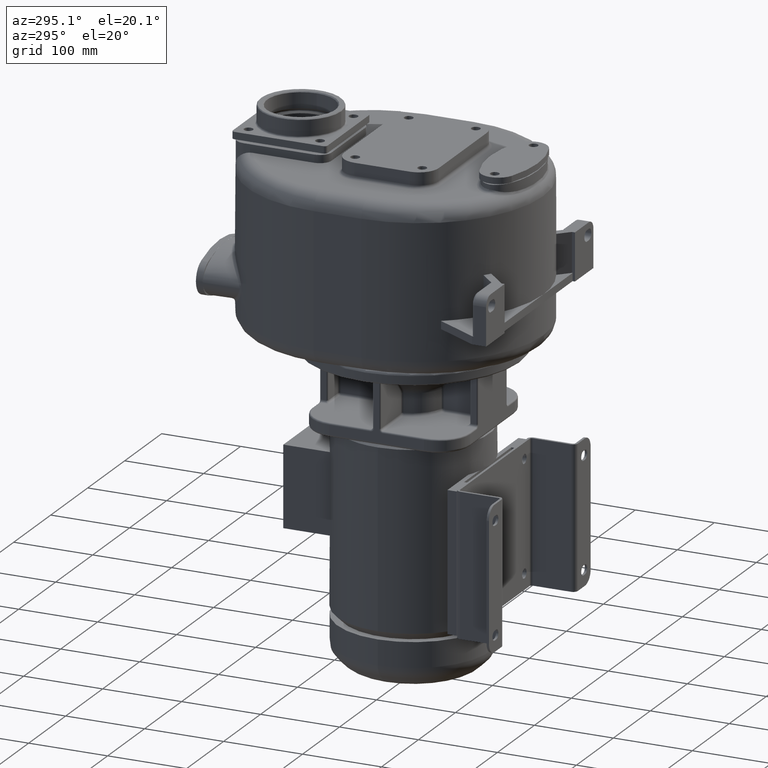
[diagram: clean part render]
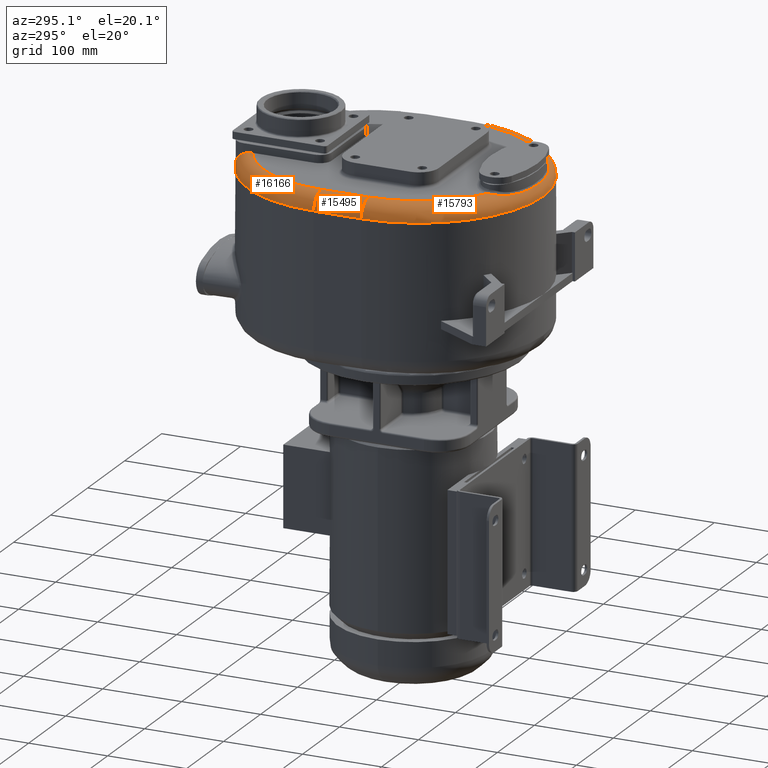
[diagram: same view with one multi-face feature highlighted, each face labeled with its STEP entity id]
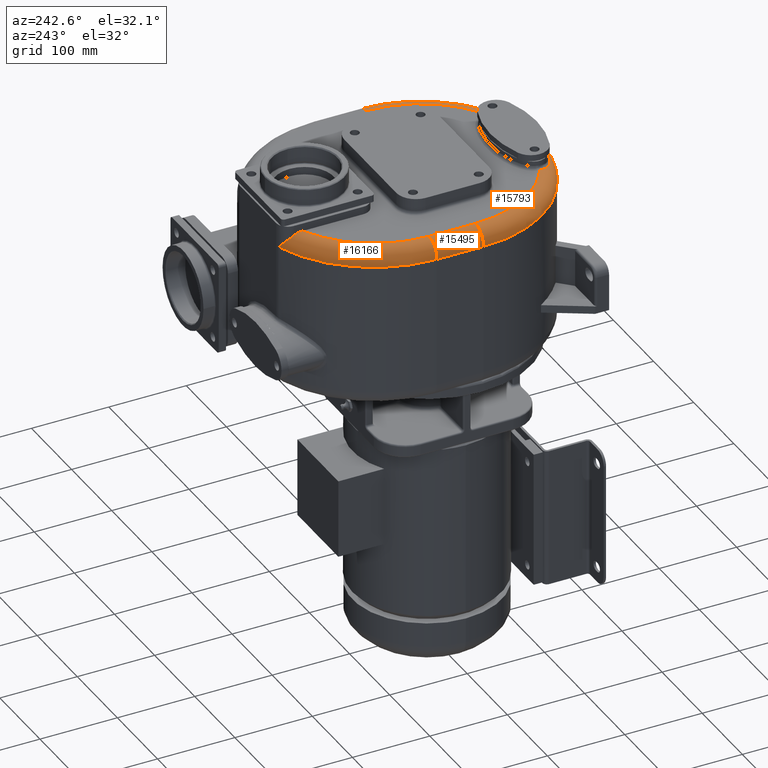
[diagram: same view with one multi-face feature highlighted, each face labeled with its STEP entity id]
A machine part, auxiliary view. The highlighted faces form ONE feature: a constant-radius fillet chain: 3 tangent blend faces with common blend radius 20 mm. The faces share edges in the B-rep.
A second angle (auxiliary view) of the same feature is appended — it is thin or edge-on in the first view.
Their STEP definitions:
[1] entity #15793 (Torus):
#1840=CARTESIAN_POINT('',(1.6E1,0.E0,2.875E2));
#1841=DIRECTION('',(0.E0,0.E0,1.E0));
#1842=DIRECTION('',(-1.E0,0.E0,0.E0));
#1843=AXIS2_PLACEMENT_3D('',#1840,#1841,#1842);
#2046=CARTESIAN_POINT('',(1.6E1,0.E0,3.075E2));
#2047=DIRECTION('',(0.E0,0.E0,1.E0));
#2048=DIRECTION('',(-1.E0,0.E0,0.E0));
#2049=AXIS2_PLACEMENT_3D('',#2046,#2047,#2048);
#2069=CARTESIAN_POINT('',(1.6E1,0.E0,3.075E2));
#2070=DIRECTION('',(0.E0,0.E0,1.E0));
#2071=DIRECTION('',(5.031239937896E-1,-8.642142366758E-1,0.E0));
#2072=AXIS2_PLACEMENT_3D('',#2069,#2070,#2071);
#2189=CARTESIAN_POINT('',(-5.292798186234E1,-1.183973534486E2,
3.075000033137E2));
#2190=CARTESIAN_POINT('',(-5.292980476801E1,-1.185131925147E2,
3.075000032280E2));
#2191=CARTESIAN_POINT('',(-5.293061271116E1,-1.187452007010E2,
3.074984672607E2));
#2192=CARTESIAN_POINT('',(-5.292332529845E1,-1.190941798066E2,
3.074917258936E2));
#2193=CARTESIAN_POINT('',(-5.290750449759E1,-1.194439293129E2,
3.074806674037E2));
#2194=CARTESIAN_POINT('',(-5.289128591524E1,-1.196774872065E2,
3.074705520706E2));
#2195=CARTESIAN_POINT('',(-5.288175776526E1,-1.197943613243E2,
3.074648154281E2));
#2197=CARTESIAN_POINT('',(-5.288175733723E1,-1.197943605865E2,
3.074648009659E2));
#2198=CARTESIAN_POINT('',(-5.286974949148E1,-1.199404846343E2,
3.074576494643E2));
#2199=CARTESIAN_POINT('',(-5.284078363290E1,-1.202350833341E2,
3.074411057510E2));
#2200=CARTESIAN_POINT('',(-5.278360147750E1,-1.206841808376E2,
3.074097476723E2));
#2201=CARTESIAN_POINT('',(-5.271151274167E1,-1.211398148685E2,
3.073718734515E2));
#2202=CARTESIAN_POINT('',(-5.262428868877E1,-1.216015648627E2,
3.073275785442E2));
#2203=CARTESIAN_POINT('',(-5.252146263493E1,-1.220688351997E2,
3.072769963797E2));
#2204=CARTESIAN_POINT('',(-5.240238139037E1,-1.225419882709E2,
3.072201834648E2));
#2205=CARTESIAN_POINT('',(-5.226617993050E1,-1.230214359210E2,
3.071571847076E2));
#2206=CARTESIAN_POINT('',(-5.211194837996E1,-1.235074638810E2,
3.070880622578E2));
#2207=CARTESIAN_POINT('',(-5.193896083487E1,-1.240005284765E2,
3.070128199989E2));
#2208=CARTESIAN_POINT('',(-5.174622934536E1,-1.245011848625E2,
3.069314454142E2));
#2209=CARTESIAN_POINT('',(-5.153272484222E1,-1.250098829403E2,
3.068439313415E2));
#2210=CARTESIAN_POINT('',(-5.129733373371E1,-1.255269938473E2,
3.067502831105E2));
#2211=CARTESIAN_POINT('',(-5.103894534911E1,-1.260526511713E2,
3.066505541315E2));
#2212=CARTESIAN_POINT('',(-5.075668525092E1,-1.265863978721E2,
3.065449318651E2));
#2213=CARTESIAN_POINT('',(-5.044966180670E1,-1.271277582236E2,
3.064336466192E2));
#2214=CARTESIAN_POINT('',(-5.011707457505E1,-1.276762083395E2,
3.063169645560E2));
#2215=CARTESIAN_POINT('',(-4.975765172305E1,-1.282318647795E2,
3.061950505888E2));
#2216=CARTESIAN_POINT('',(-4.937002102099E1,-1.287948853309E2,
3.060680694018E2));
#2217=CARTESIAN_POINT('',(-4.895283795908E1,-1.293652843111E2,
3.059362289229E2));
#2218=CARTESIAN_POINT('',(-4.850492390600E1,-1.299427852012E2,
3.057998205445E2));
#2219=CARTESIAN_POINT('',(-4.802522425740E1,-1.305269884306E2,
3.056591767509E2));
#2220=CARTESIAN_POINT('',(-4.751246230694E1,-1.311175384637E2,
3.055146752347E2));
#2221=CARTESIAN_POINT('',(-4.696527151865E1,-1.317141188742E2,
3.053667116805E2));
#2222=CARTESIAN_POINT('',(-4.638236248976E1,-1.323163477243E2,
3.052157078301E2));
#2223=CARTESIAN_POINT('',(-4.576230231306E1,-1.329240394446E2,
3.050620308384E2));
#2224=CARTESIAN_POINT('',(-4.510357323295E1,-1.335369013141E2,
3.049061132274E2));
#2225=CARTESIAN_POINT('',(-4.440459879147E1,-1.341545169044E2,
3.047484648380E2));
#2226=CARTESIAN_POINT('',(-4.366397118507E1,-1.347764004506E2,
3.045895928089E2));
#2227=CARTESIAN_POINT('',(-4.288036913103E1,-1.354019763369E2,
3.044300296123E2));
#2228=CARTESIAN_POINT('',(-4.205195502837E1,-1.360308403012E2,
3.042703306740E2));
#2229=CARTESIAN_POINT('',(-4.117703670483E1,-1.366625313494E2,
3.041110267843E2));
#2230=CARTESIAN_POINT('',(-4.025397094759E1,-1.372965051365E2,
3.039526590640E2));
#2231=CARTESIAN_POINT('',(-3.928078579476E1,-1.379321787089E2,
3.037958467943E2));
#2232=CARTESIAN_POINT('',(-3.825574757110E1,-1.385689052657E2,
3.036411484189E2));
#2233=CARTESIAN_POINT('',(-3.717701342513E1,-1.392059662773E2,
3.034891504273E2));
#2234=CARTESIAN_POINT('',(-3.604248993640E1,-1.398426148719E2,
3.033404682761E2));
#2235=CARTESIAN_POINT('',(-3.485032874139E1,-1.404780355740E2,
3.031956293332E2));
#2236=CARTESIAN_POINT('',(-3.359834443875E1,-1.411113078034E2,
3.030552472735E2));
#2237=CARTESIAN_POINT('',(-3.228453471196E1,-1.417414741142E2,
3.029198197774E2));
#2238=CARTESIAN_POINT('',(-3.090677525730E1,-1.423674033688E2,
3.027899042297E2));
#2239=CARTESIAN_POINT('',(-2.946303438106E1,-1.429879135523E2,
3.026659552145E2));
#2240=CARTESIAN_POINT('',(-2.795133692914E1,-1.436016130269E2,
3.025484519068E2));
#2241=CARTESIAN_POINT('',(-2.636980744508E1,-1.442070451952E2,
3.024377614560E2));
#2242=CARTESIAN_POINT('',(-2.471683772563E1,-1.448024835092E2,
3.023342641632E2));
#2243=CARTESIAN_POINT('',(-2.299099724951E1,-1.453861417328E2,
3.022381976541E2));
#2244=CARTESIAN_POINT('',(-2.119138370054E1,-1.459559072241E2,
3.021498103075E2));
#2245=CARTESIAN_POINT('',(-1.931736204771E1,-1.465096402879E2,
3.020691738167E2));
#2246=CARTESIAN_POINT('',(-1.736910107098E1,-1.470448640685E2,
3.019963598855E2));
#2247=CARTESIAN_POINT('',(-1.534718912248E1,-1.475590956810E2,
3.019312608804E2));
#2248=CARTESIAN_POINT('',(-1.325311340199E1,-1.480496297509E2,
3.018737232924E2));
#2249=CARTESIAN_POINT('',(-1.108910272193E1,-1.485137095943E2,
3.018234830799E2));
#2250=CARTESIAN_POINT('',(-8.858018230180E0,-1.489486294898E2,
3.017801352496E2));
#2251=CARTESIAN_POINT('',(-6.563930801049E0,-1.493515220614E2,
3.017433156124E2));
#2252=CARTESIAN_POINT('',(-4.211031163886E0,-1.497199144047E2,
3.017124021416E2));
#2253=CARTESIAN_POINT('',(-1.804842155138E0,-1.500511321742E2,
3.016869782119E2));
#2254=CARTESIAN_POINT('',(6.491556645548E-1,-1.503430574755E2,
3.016663504653E2));
#2255=CARTESIAN_POINT('',(3.144640717012E0,-1.505935483414E2,3.016500498561E2));
#2256=CARTESIAN_POINT('',(5.675066699545E0,-1.508008740700E2,3.016375343754E2));
#2257=CARTESIAN_POINT('',(8.233737029087E0,-1.509636574149E2,3.016282737571E2));
#2258=CARTESIAN_POINT('',(1.081368807875E1,-1.510806298291E2,3.016220169075E2));
#2259=CARTESIAN_POINT('',(1.340796836041E1,-1.511511156376E2,3.016183421067E2));
#2260=CARTESIAN_POINT('',(1.600936141155E1,-1.511745612074E2,3.016171325776E2));
#2261=CARTESIAN_POINT('',(1.861056249272E1,-1.511507497253E2,3.016183870040E2));
#2262=CARTESIAN_POINT('',(2.120429123367E1,-1.510800107954E2,3.016220140499E2));
#2263=CARTESIAN_POINT('',(2.378353936204E1,-1.509627088603E2,3.016283282107E2));
#2264=CARTESIAN_POINT('',(2.634131893345E1,-1.507996655204E2,3.016376146239E2));
#2265=CARTESIAN_POINT('',(2.887072906378E1,-1.505921608466E2,3.016501185301E2));
#2266=CARTESIAN_POINT('',(3.136511648234E1,-1.503414799939E2,3.016664624855E2));
#2267=CARTESIAN_POINT('',(3.381780228274E1,-1.500494658942E2,3.016870973323E2));
#2268=CARTESIAN_POINT('',(3.622266892384E1,-1.497181988557E2,3.017125365613E2));
#2269=CARTESIAN_POINT('',(3.857416593230E1,-1.493498126378E2,3.017434668815E2));
#2270=CARTESIAN_POINT('',(4.086679592365E1,-1.489469969757E2,3.017802900406E2));
#2271=CARTESIAN_POINT('',(4.309650604289E1,-1.485121905545E2,3.018236381151E2));
#2272=CARTESIAN_POINT('',(4.525919571440E1,-1.480482537330E2,3.018738825813E2));
#2273=CARTESIAN_POINT('',(4.735207931798E1,-1.475579010642E2,3.019314018488E2));
#2274=CARTESIAN_POINT('',(4.937290246493E1,-1.470438462712E2,3.019964989850E2));
#2275=CARTESIAN_POINT('',(5.132015597890E1,-1.465088436491E2,3.020692822943E2));
#2276=CARTESIAN_POINT('',(5.319328989569E1,-1.459553133895E2,3.021499041318E2));
#2277=CARTESIAN_POINT('',(5.499210028693E1,-1.453857799851E2,3.022382529697E2));
#2278=CARTESIAN_POINT('',(5.671724125742E1,-1.448023336230E2,3.023342932251E2));
#2279=CARTESIAN_POINT('',(5.836959281476E1,-1.442071244878E2,3.024377452652E2));
#2280=CARTESIAN_POINT('',(5.995057791812E1,-1.436019038636E2,3.025484008967E2));
#2281=CARTESIAN_POINT('',(6.146180342138E1,-1.429884279291E2,3.026658526211E2));
#2282=CARTESIAN_POINT('',(6.290511279448E1,-1.423681297980E2,3.027897594834E2));
#2283=CARTESIAN_POINT('',(6.428250265543E1,-1.417424227120E2,3.029196177603E2));
#2284=CARTESIAN_POINT('',(6.559595819372E1,-1.411124763209E2,3.030549943604E2));
#2285=CARTESIAN_POINT('',(6.684763222573E1,-1.404794323484E2,3.031953154532E2));
#2286=CARTESIAN_POINT('',(6.803949867308E1,-1.398442506324E2,3.033400893451E2));
#2287=CARTESIAN_POINT('',(6.917373774425E1,-1.392078404786E2,3.034887117382E2));
#2288=CARTESIAN_POINT('',(7.025224252100E1,-1.385710355283E2,3.036406305821E2));
#2289=CARTESIAN_POINT('',(7.127700651253E1,-1.379345699591E2,3.037952663409E2));
#2290=CARTESIAN_POINT('',(7.224999654142E1,-1.372991639143E2,3.039519984937E2));
#2291=CARTESIAN_POINT('',(7.317289646228E1,-1.366654550103E2,3.041102882864E2));
#2292=CARTESIAN_POINT('',(7.404765676747E1,-1.360340030143E2,3.042695353685E2));
#2293=CARTESIAN_POINT('',(7.487600359629E1,-1.354053733925E2,3.044291637100E2));
#2294=CARTESIAN_POINT('',(7.565951442028E1,-1.347800568778E2,3.045886552680E2));
#2295=CARTESIAN_POINT('',(7.639999537668E1,-1.341584601843E2,3.047474620161E2));
#2296=CARTESIAN_POINT('',(7.709893949214E1,-1.335410992055E2,3.049050424566E2));
#2297=CARTESIAN_POINT('',(7.775772732838E1,-1.329284237087E2,3.050609136553E2));
#2298=CARTESIAN_POINT('',(7.837793405463E1,-1.323207839870E2,3.052145943984E2));
#2299=CARTESIAN_POINT('',(7.896109923759E1,-1.317185257471E2,3.053656162071E2));
#2300=CARTESIAN_POINT('',(7.950851183822E1,-1.311219671009E2,3.055135827633E2));
#2301=CARTESIAN_POINT('',(8.002147819936E1,-1.305314498919E2,3.056580886015E2));
#2302=CARTESIAN_POINT('',(8.050135823642E1,-1.299472501599E2,3.057987555738E2));
#2303=CARTESIAN_POINT('',(8.094949017312E1,-1.293696888337E2,3.059352049587E2));
#2304=CARTESIAN_POINT('',(8.136691918998E1,-1.287992216826E2,3.060670829619E2));
#2305=CARTESIAN_POINT('',(8.175473704042E1,-1.282362199411E2,3.061940819001E2));
#2306=CARTESIAN_POINT('',(8.211428945500E1,-1.276806729546E2,3.063159963706E2));
#2307=CARTESIAN_POINT('',(8.244694648770E1,-1.271324170718E2,3.064326675387E2));
#2308=CARTESIAN_POINT('',(8.275401957304E1,-1.265912771643E2,3.065439448241E2));
#2309=CARTESIAN_POINT('',(8.303639640435E1,-1.260576263635E2,3.066495905573E2));
#2310=CARTESIAN_POINT('',(8.329497441614E1,-1.255318927543E2,3.067493802753E2));
#2311=CARTESIAN_POINT('',(8.353065756602E1,-1.250144745129E2,3.068431289640E2));
#2312=CARTESIAN_POINT('',(8.374449643909E1,-1.245053424392E2,3.069307582688E2));
#2313=CARTESIAN_POINT('',(8.393755201386E1,-1.240042452953E2,3.070122399674E2));
#2314=CARTESIAN_POINT('',(8.411081702734E1,-1.235108542377E2,3.070875626637E2));
#2315=CARTESIAN_POINT('',(8.426523293736E1,-1.230247508919E2,3.071567255934E2));
#2316=CARTESIAN_POINT('',(8.440162591711E1,-1.225454177352E2,3.072197373793E2));
#2317=CARTESIAN_POINT('',(8.452077241155E1,-1.220723870206E2,3.072765789815E2));
#2318=CARTESIAN_POINT('',(8.462363207750E1,-1.216052049436E2,3.073272006302E2));
#2319=CARTESIAN_POINT('',(8.471088848431E1,-1.211433976510E2,3.073715531990E2));
#2320=CARTESIAN_POINT('',(8.478309581749E1,-1.206873162438E2,3.074095146596E2));
#2321=CARTESIAN_POINT('',(8.484036099779E1,-1.202371658835E2,3.074409859635E2));
#2322=CARTESIAN_POINT('',(8.486967942014E1,-1.199412753459E2,3.074576163944E2));
#2323=CARTESIAN_POINT('',(8.488175733723E1,-1.197943605865E2,3.074648009659E2));
#2325=CARTESIAN_POINT('',(8.488175733723E1,-1.197943605865E2,3.074648009659E2));
#2326=CARTESIAN_POINT('',(8.489128429887E1,-1.196774862671E2,3.074705379756E2));
#2327=CARTESIAN_POINT('',(8.490750016107E1,-1.194439285755E2,3.074806742351E2));
#2328=CARTESIAN_POINT('',(8.492332802953E1,-1.190941732167E2,3.074917238693E2));
#2329=CARTESIAN_POINT('',(8.493061399599E1,-1.187451952717E2,3.074984692527E2));
#2330=CARTESIAN_POINT('',(8.492980398044E1,-1.185131902707E2,3.075000001507E2));
#2331=CARTESIAN_POINT('',(8.492798186930E1,-1.183973534984E2,3.075E2));
#2333=CARTESIAN_POINT('',(-1.21E2,0.E0,2.875E2));
#2334=DIRECTION('',(0.E0,-1.E0,0.E0));
#2335=DIRECTION('',(0.E0,0.E0,1.E0));
#2336=AXIS2_PLACEMENT_3D('',#2333,#2334,#2335);
#2782=CARTESIAN_POINT('',(1.53E2,0.E0,2.875E2));
#2783=DIRECTION('',(0.E0,1.E0,0.E0));
#2784=DIRECTION('',(0.E0,0.E0,1.E0));
#2785=AXIS2_PLACEMENT_3D('',#2782,#2783,#2784);
#13061=CARTESIAN_POINT('',(1.53E2,0.E0,3.075E2));
#13062=VERTEX_POINT('',#13061);
#13063=CARTESIAN_POINT('',(1.73E2,9.495215197787E-12,2.875E2));
#13064=VERTEX_POINT('',#13063);
#13065=CARTESIAN_POINT('',(-1.41E2,-3.845390949323E-14,2.875E2));
#13066=VERTEX_POINT('',#13065);
#13068=CARTESIAN_POINT('',(-1.21E2,0.E0,3.075E2));
#13070=VERTEX_POINT('',#13068);
#13266=VERTEX_POINT('',#2189);
#13267=VERTEX_POINT('',#2195);
#13270=VERTEX_POINT('',#2323);
#13272=VERTEX_POINT('',#2331);
#15775=CARTESIAN_POINT('',(1.6E1,0.E0,2.875E2));
#15776=DIRECTION('',(0.E0,0.E0,-1.E0));
#15777=DIRECTION('',(-9.999727331280E-1,7.384646269587E-3,0.E0));
#15778=AXIS2_PLACEMENT_3D('',#15775,#15776,#15777);
#15779=TOROIDAL_SURFACE('',#15778,1.37E2,2.E1);
#15781=ORIENTED_EDGE('',*,*,#15780,.T.);
#15783=ORIENTED_EDGE('',*,*,#15782,.T.);
#15784=ORIENTED_EDGE('',*,*,#15765,.T.);
#15785=ORIENTED_EDGE('',*,*,#15522,.T.);
#15787=ORIENTED_EDGE('',*,*,#15786,.T.);
#15788=ORIENTED_EDGE('',*,*,#15431,.F.);
#15789=ORIENTED_EDGE('',*,*,#15488,.F.);
#15790=ORIENTED_EDGE('',*,*,#15503,.T.);
#15791=EDGE_LOOP('',(#15781,#15783,#15784,#15785,#15787,#15788,#15789,#15790));
#15792=FACE_OUTER_BOUND('',#15791,.F.);
#15793=ADVANCED_FACE('',(#15792),#15779,.T.);
#1844=CIRCLE('',#1843,1.57E2);
#2050=CIRCLE('',#2049,1.37E2);
#2073=CIRCLE('',#2072,1.37E2);
#2196=B_SPLINE_CURVE_WITH_KNOTS('',3,(#2189,#2190,#2191,#2192,#2193,#2194,
#2195),.UNSPECIFIED.,.F.,.F.,(4,1,1,1,4),(0.E0,2.5E-1,5.E-1,7.5E-1,1.E0),
.UNSPECIFIED.);
#2324=B_SPLINE_CURVE_WITH_KNOTS('',3,(#2197,#2198,#2199,#2200,#2201,#2202,#2203,
#2204,#2205,#2206,#2207,#2208,#2209,#2210,#2211,#2212,#2213,#2214,#2215,#2216,
#2217,#2218,#2219,#2220,#2221,#2222,#2223,#2224,#2225,#2226,#2227,#2228,#2229,
#2230,#2231,#2232,#2233,#2234,#2235,#2236,#2237,#2238,#2239,#2240,#2241,#2242,
#2243,#2244,#2245,#2246,#2247,#2248,#2249,#2250,#2251,#2252,#2253,#2254,#2255,
#2256,#2257,#2258,#2259,#2260,#2261,#2262,#2263,#2264,#2265,#2266,#2267,#2268,
#2269,#2270,#2271,#2272,#2273,#2274,#2275,#2276,#2277,#2278,#2279,#2280,#2281,
#2282,#2283,#2284,#2285,#2286,#2287,#2288,#2289,#2290,#2291,#2292,#2293,#2294,
#2295,#2296,#2297,#2298,#2299,#2300,#2301,#2302,#2303,#2304,#2305,#2306,#2307,
#2308,#2309,#2310,#2311,#2312,#2313,#2314,#2315,#2316,#2317,#2318,#2319,#2320,
#2321,#2322,#2323),.UNSPECIFIED.,.F.,.F.,(4,1,1,1,1,1,1,1,1,1,1,1,1,1,1,1,1,1,1,
1,1,1,1,1,1,1,1,1,1,1,1,1,1,1,1,1,1,1,1,1,1,1,1,1,1,1,1,1,1,1,1,1,1,1,1,1,1,1,1,
1,1,1,1,1,1,1,1,1,1,1,1,1,1,1,1,1,1,1,1,1,1,1,1,1,1,1,1,1,1,1,1,1,1,1,1,1,1,1,1,
1,1,1,1,1,1,1,1,1,1,1,1,1,1,1,1,1,1,1,1,1,1,1,1,1,4),(0.E0,8.064516129032E-3,
1.612903225806E-2,2.419354838710E-2,3.225806451613E-2,4.032258064516E-2,
4.838709677419E-2,5.645161290323E-2,6.451612903226E-2,7.258064516129E-2,
8.064516129032E-2,8.870967741935E-2,9.677419354839E-2,1.048387096774E-1,
1.129032258065E-1,1.209677419355E-1,1.290322580645E-1,1.370967741935E-1,
1.451612903226E-1,1.532258064516E-1,1.612903225806E-1,1.693548387097E-1,
1.774193548387E-1,1.854838709677E-1,1.935483870968E-1,2.016129032258E-1,
2.096774193548E-1,2.177419354839E-1,2.258064516129E-1,2.338709677419E-1,
2.419354838710E-1,2.5E-1,2.580645161290E-1,2.661290322581E-1,2.741935483871E-1,
2.822580645161E-1,2.903225806452E-1,2.983870967742E-1,3.064516129032E-1,
3.145161290323E-1,3.225806451613E-1,3.306451612903E-1,3.387096774194E-1,
3.467741935484E-1,3.548387096774E-1,3.629032258065E-1,3.709677419355E-1,
3.790322580645E-1,3.870967741935E-1,3.951612903226E-1,4.032258064516E-1,
4.112903225806E-1,4.193548387097E-1,4.274193548387E-1,4.354838709677E-1,
4.435483870968E-1,4.516129032258E-1,4.596774193548E-1,4.677419354839E-1,
4.758064516129E-1,4.838709677419E-1,4.919354838710E-1,5.E-1,5.080645161290E-1,
5.161290322581E-1,5.241935483871E-1,5.322580645161E-1,5.403225806452E-1,
5.483870967742E-1,5.564516129032E-1,5.645161290323E-1,5.725806451613E-1,
5.806451612903E-1,5.887096774194E-1,5.967741935484E-1,6.048387096774E-1,
6.129032258065E-1,6.209677419355E-1,6.290322580645E-1,6.370967741935E-1,
6.451612903226E-1,6.532258064516E-1,6.612903225806E-1,6.693548387097E-1,
6.774193548387E-1,6.854838709677E-1,6.935483870968E-1,7.016129032258E-1,
7.096774193548E-1,7.177419354839E-1,7.258064516129E-1,7.338709677419E-1,
7.419354838710E-1,7.5E-1,7.580645161290E-1,7.661290322581E-1,7.741935483871E-1,
7.822580645161E-1,7.903225806452E-1,7.983870967742E-1,8.064516129032E-1,
8.145161290323E-1,8.225806451613E-1,8.306451612903E-1,8.387096774194E-1,
8.467741935484E-1,8.548387096774E-1,8.629032258065E-1,8.709677419355E-1,
8.790322580645E-1,8.870967741935E-1,8.951612903226E-1,9.032258064516E-1,
9.112903225806E-1,9.193548387097E-1,9.274193548387E-1,9.354838709677E-1,
9.435483870968E-1,9.516129032258E-1,9.596774193548E-1,9.677419354839E-1,
9.758064516129E-1,9.838709677419E-1,9.919354838710E-1,1.E0),.UNSPECIFIED.);
#2332=B_SPLINE_CURVE_WITH_KNOTS('',3,(#2325,#2326,#2327,#2328,#2329,#2330,
#2331),.UNSPECIFIED.,.F.,.F.,(4,1,1,1,4),(0.E0,2.5E-1,5.E-1,7.5E-1,1.E0),
.UNSPECIFIED.);
#2337=CIRCLE('',#2336,2.E1);
#2786=CIRCLE('',#2785,2.E1);
#15431=EDGE_CURVE('',#13066,#13064,#1844,.T.);
#15488=EDGE_CURVE('',#13070,#13066,#2337,.T.);
#15503=EDGE_CURVE('',#13070,#13266,#2050,.T.);
#15522=EDGE_CURVE('',#13272,#13062,#2073,.T.);
#15765=EDGE_CURVE('',#13270,#13272,#2332,.T.);
#15780=EDGE_CURVE('',#13266,#13267,#2196,.T.);
#15782=EDGE_CURVE('',#13267,#13270,#2324,.T.);
#15786=EDGE_CURVE('',#13062,#13064,#2786,.T.);
[2] entity #15495 (Cylinder):
#1907=DIRECTION('',(0.E0,-1.E0,0.E0));
#1908=VECTOR('',#1907,6.031889516338E1);
#1909=CARTESIAN_POINT('',(-1.41E2,6.031889516342E1,2.875E2));
#1910=LINE('',#1909,#1908);
#1915=CARTESIAN_POINT('',(-1.21E2,6.031889516343E1,2.875E2));
#1916=DIRECTION('',(0.E0,-1.E0,0.E0));
#1917=DIRECTION('',(0.E0,0.E0,1.E0));
#1918=AXIS2_PLACEMENT_3D('',#1915,#1916,#1917);
#2051=DIRECTION('',(0.E0,-1.E0,0.E0));
#2052=VECTOR('',#2051,6.031889516343E1);
#2053=CARTESIAN_POINT('',(-1.21E2,6.031889516343E1,3.075E2));
#2054=LINE('',#2053,#2052);
#2333=CARTESIAN_POINT('',(-1.21E2,0.E0,2.875E2));
#2334=DIRECTION('',(0.E0,-1.E0,0.E0));
#2335=DIRECTION('',(0.E0,0.E0,1.E0));
#2336=AXIS2_PLACEMENT_3D('',#2333,#2334,#2335);
#13065=CARTESIAN_POINT('',(-1.41E2,-3.845390949323E-14,2.875E2));
#13066=VERTEX_POINT('',#13065);
#13067=CARTESIAN_POINT('',(-1.21E2,6.031889516343E1,3.075E2));
#13068=CARTESIAN_POINT('',(-1.21E2,0.E0,3.075E2));
#13069=VERTEX_POINT('',#13067);
#13070=VERTEX_POINT('',#13068);
#13071=CARTESIAN_POINT('',(-1.41E2,6.031889516342E1,2.875E2));
#13072=VERTEX_POINT('',#13071);
#15481=CARTESIAN_POINT('',(-1.21E2,6.147829516551E1,2.875E2));
#15482=DIRECTION('',(0.E0,-1.E0,0.E0));
#15483=DIRECTION('',(0.E0,0.E0,1.E0));
#15484=AXIS2_PLACEMENT_3D('',#15481,#15482,#15483);
#15485=CYLINDRICAL_SURFACE('',#15484,2.E1);
#15487=ORIENTED_EDGE('',*,*,#15486,.T.);
#15489=ORIENTED_EDGE('',*,*,#15488,.T.);
#15490=ORIENTED_EDGE('',*,*,#15475,.F.);
#15492=ORIENTED_EDGE('',*,*,#15491,.F.);
#15493=EDGE_LOOP('',(#15487,#15489,#15490,#15492));
#15494=FACE_OUTER_BOUND('',#15493,.F.);
#15495=ADVANCED_FACE('',(#15494),#15485,.T.);
#1919=CIRCLE('',#1918,2.E1);
#2337=CIRCLE('',#2336,2.E1);
#15475=EDGE_CURVE('',#13072,#13066,#1910,.T.);
#15486=EDGE_CURVE('',#13069,#13070,#2054,.T.);
#15488=EDGE_CURVE('',#13070,#13066,#2337,.T.);
#15491=EDGE_CURVE('',#13069,#13072,#1919,.T.);
[3] entity #16166 (Torus):
#686=CARTESIAN_POINT('',(1.6E1,6.031889516343E1,2.875E2));
#687=DIRECTION('',(0.E0,0.E0,1.E0));
#688=DIRECTION('',(-3.169014084507E-1,9.484584847646E-1,0.E0));
#689=AXIS2_PLACEMENT_3D('',#686,#687,#688);
#1915=CARTESIAN_POINT('',(-1.21E2,6.031889516343E1,2.875E2));
#1916=DIRECTION('',(0.E0,-1.E0,0.E0));
#1917=DIRECTION('',(0.E0,0.E0,1.E0));
#1918=AXIS2_PLACEMENT_3D('',#1915,#1916,#1917);
#2055=CARTESIAN_POINT('',(1.6E1,6.031889516343E1,3.075E2));
#2056=DIRECTION('',(0.E0,0.E0,1.E0));
#2057=DIRECTION('',(-4.379562043796E-1,8.989963086940E-1,0.E0));
#2058=AXIS2_PLACEMENT_3D('',#2055,#2056,#2057);
#2892=CARTESIAN_POINT('',(-3.375352112676E1,2.092268772715E2,2.875E2));
#2893=CARTESIAN_POINT('',(-3.393517659759E1,2.091661820745E2,2.877103264396E2));
#2894=CARTESIAN_POINT('',(-3.429592892977E1,2.090379154182E2,2.881307073786E2));
#2895=CARTESIAN_POINT('',(-3.482923906533E1,2.088249687695E2,2.887605688269E2));
#2896=CARTESIAN_POINT('',(-3.535325523995E1,2.085921137805E2,2.893882416449E2));
#2897=CARTESIAN_POINT('',(-3.586717329860E1,2.083398275570E2,2.900129979619E2));
#2898=CARTESIAN_POINT('',(-3.637016532109E1,2.080686345041E2,2.906340635465E2));
#2899=CARTESIAN_POINT('',(-3.686098166333E1,2.077793877882E2,2.912500988980E2));
#2900=CARTESIAN_POINT('',(-3.733876433507E1,2.074728525700E2,2.918601917004E2));
#2901=CARTESIAN_POINT('',(-3.780300330397E1,2.071496229853E2,2.924638448341E2));
#2902=CARTESIAN_POINT('',(-3.825266929370E1,2.068107246233E2,2.930598482316E2));
#2903=CARTESIAN_POINT('',(-3.868701293907E1,2.064571294037E2,2.936472847211E2));
#2904=CARTESIAN_POINT('',(-3.910579944471E1,2.060894437380E2,2.942258990186E2));
#2905=CARTESIAN_POINT('',(-3.950826558339E1,2.057087781257E2,2.947946771877E2));
#2906=CARTESIAN_POINT('',(-3.989376965046E1,2.053162981679E2,2.953526866386E2));
#2907=CARTESIAN_POINT('',(-4.026230316008E1,2.049125897231E2,2.958998686008E2));
#2908=CARTESIAN_POINT('',(-4.061337366446E1,2.044987847530E2,2.964354262126E2));
#2909=CARTESIAN_POINT('',(-4.094652872082E1,2.040761309202E2,2.969585317612E2));
#2910=CARTESIAN_POINT('',(-4.126168849348E1,2.036455272293E2,2.974688677876E2));
#2911=CARTESIAN_POINT('',(-4.155900903304E1,2.032075521800E2,2.979664850332E2));
#2912=CARTESIAN_POINT('',(-4.183832678969E1,2.027632664488E2,2.984508813005E2));
#2913=CARTESIAN_POINT('',(-4.209957322739E1,2.023137192514E2,2.989216349362E2));
#2914=CARTESIAN_POINT('',(-4.234299317549E1,2.018594640516E2,2.993788540824E2));
#2915=CARTESIAN_POINT('',(-4.256858037674E1,2.014015311188E2,2.998221592202E2));
#2916=CARTESIAN_POINT('',(-4.277640570071E1,2.009409510490E2,3.002512276461E2));
#2917=CARTESIAN_POINT('',(-4.296674690918E1,2.004783649480E2,3.006661154065E2));
#2918=CARTESIAN_POINT('',(-4.313978150327E1,2.000147177392E2,3.010666163266E2));
#2919=CARTESIAN_POINT('',(-4.329593125866E1,1.995503285613E2,3.014530634703E2));
#2920=CARTESIAN_POINT('',(-4.343537296188E1,1.990862497326E2,3.018251708166E2));
#2921=CARTESIAN_POINT('',(-4.355854246863E1,1.986228034765E2,3.021832617073E2));
#2922=CARTESIAN_POINT('',(-4.366578083505E1,1.981605500519E2,3.025274398587E2));
#2923=CARTESIAN_POINT('',(-4.375739262213E1,1.977003667999E2,3.028575950407E2));
#2924=CARTESIAN_POINT('',(-4.383386488201E1,1.972422376843E2,3.031742534670E2));
#2925=CARTESIAN_POINT('',(-4.389553956951E1,1.967867643276E2,3.034774725869E2));
#2926=CARTESIAN_POINT('',(-4.394278894496E1,1.963346361494E2,3.037672783733E2));
#2927=CARTESIAN_POINT('',(-4.397606443283E1,1.958856597198E2,3.040442454362E2));
#2928=CARTESIAN_POINT('',(-4.399572065575E1,1.954403520851E2,3.043084690875E2));
#2929=CARTESIAN_POINT('',(-4.4E1,1.951462683397E2,3.044761982673E2));
#2930=CARTESIAN_POINT('',(-4.4E1,1.95E2,3.045579831449E2));
#2932=CARTESIAN_POINT('',(-4.4E1,1.95E2,3.045579831449E2));
#2933=CARTESIAN_POINT('',(-4.4E1,1.948146728483E2,3.046616074730E2));
#2934=CARTESIAN_POINT('',(-4.4E1,1.944401053724E2,3.048640495715E2));
#2935=CARTESIAN_POINT('',(-4.4E1,1.938660432864E2,3.051533310656E2));
#2936=CARTESIAN_POINT('',(-4.4E1,1.932808312099E2,3.054274852687E2));
#2937=CARTESIAN_POINT('',(-4.4E1,1.926846809307E2,3.056862455635E2));
#2938=CARTESIAN_POINT('',(-4.4E1,1.920777637360E2,3.059293283199E2));
#2939=CARTESIAN_POINT('',(-4.4E1,1.914610509240E2,3.061561603867E2));
#2940=CARTESIAN_POINT('',(-4.4E1,1.908347727197E2,3.063664967396E2));
#2941=CARTESIAN_POINT('',(-4.4E1,1.901992131805E2,3.065600468891E2));
#2942=CARTESIAN_POINT('',(-4.4E1,1.895554184234E2,3.067363233094E2));
#2943=CARTESIAN_POINT('',(-4.4E1,1.889037443278E2,3.068950867907E2));
#2944=CARTESIAN_POINT('',(-4.4E1,1.882444853633E2,3.070360914517E2));
#2945=CARTESIAN_POINT('',(-4.4E1,1.875787942853E2,3.071589410626E2));
#2946=CARTESIAN_POINT('',(-4.4E1,1.869070679462E2,3.072634407956E2));
#2947=CARTESIAN_POINT('',(-4.4E1,1.862297072545E2,3.073493770053E2));
#2948=CARTESIAN_POINT('',(-4.4E1,1.855479427206E2,3.074164688939E2));
#2949=CARTESIAN_POINT('',(-4.4E1,1.848622830050E2,3.074645752081E2));
#2950=CARTESIAN_POINT('',(-4.4E1,1.841730617445E2,3.074935451454E2));
#2951=CARTESIAN_POINT('',(-4.4E1,1.837122290049E2,3.075E2));
#2952=CARTESIAN_POINT('',(-4.4E1,1.834813894545E2,3.075E2));
#13067=CARTESIAN_POINT('',(-1.21E2,6.031889516343E1,3.075E2));
#13069=VERTEX_POINT('',#13067);
#13071=CARTESIAN_POINT('',(-1.41E2,6.031889516342E1,2.875E2));
#13072=VERTEX_POINT('',#13071);
#13073=CARTESIAN_POINT('',(-4.4E1,1.834813894545E2,3.075E2));
#13074=VERTEX_POINT('',#13073);
#13075=CARTESIAN_POINT('',(-3.375352112676E1,2.092268772715E2,2.875E2));
#13076=VERTEX_POINT('',#13075);
#13081=VERTEX_POINT('',#2930);
#16154=CARTESIAN_POINT('',(1.6E1,6.031889516343E1,2.875E2));
#16155=DIRECTION('',(0.E0,0.E0,-1.E0));
#16156=DIRECTION('',(-3.098887371292E-1,9.507728280722E-1,0.E0));
#16157=AXIS2_PLACEMENT_3D('',#16154,#16155,#16156);
#16158=TOROIDAL_SURFACE('',#16157,1.37E2,2.E1);
#16159=ORIENTED_EDGE('',*,*,#15506,.T.);
#16160=ORIENTED_EDGE('',*,*,#15491,.T.);
#16161=ORIENTED_EDGE('',*,*,#14536,.F.);
#16162=ORIENTED_EDGE('',*,*,#14941,.T.);
#16163=ORIENTED_EDGE('',*,*,#16146,.T.);
#16164=EDGE_LOOP('',(#16159,#16160,#16161,#16162,#16163));
#16165=FACE_OUTER_BOUND('',#16164,.F.);
#16166=ADVANCED_FACE('',(#16165),#16158,.T.);
#690=CIRCLE('',#689,1.57E2);
#1919=CIRCLE('',#1918,2.E1);
#2059=CIRCLE('',#2058,1.37E2);
#2931=B_SPLINE_CURVE_WITH_KNOTS('',3,(#2892,#2893,#2894,#2895,#2896,#2897,#2898,
#2899,#2900,#2901,#2902,#2903,#2904,#2905,#2906,#2907,#2908,#2909,#2910,#2911,
#2912,#2913,#2914,#2915,#2916,#2917,#2918,#2919,#2920,#2921,#2922,#2923,#2924,
#2925,#2926,#2927,#2928,#2929,#2930),.UNSPECIFIED.,.F.,.F.,(4,1,1,1,1,1,1,1,1,1,
1,1,1,1,1,1,1,1,1,1,1,1,1,1,1,1,1,1,1,1,1,1,1,1,1,1,4),(0.E0,2.777777777778E-2,
5.555555555556E-2,8.333333333333E-2,1.111111111111E-1,1.388888888889E-1,
1.666666666667E-1,1.944444444444E-1,2.222222222222E-1,2.5E-1,2.777777777778E-1,
3.055555555556E-1,3.333333333333E-1,3.611111111111E-1,3.888888888889E-1,
4.166666666667E-1,4.444444444444E-1,4.722222222222E-1,5.E-1,5.277777777778E-1,
5.555555555556E-1,5.833333333333E-1,6.111111111111E-1,6.388888888889E-1,
6.666666666667E-1,6.944444444444E-1,7.222222222222E-1,7.5E-1,7.777777777778E-1,
8.055555555556E-1,8.333333333333E-1,8.611111111111E-1,8.888888888889E-1,
9.166666666667E-1,9.444444444444E-1,9.722222222222E-1,1.E0),.UNSPECIFIED.);
#2953=B_SPLINE_CURVE_WITH_KNOTS('',3,(#2932,#2933,#2934,#2935,#2936,#2937,#2938,
#2939,#2940,#2941,#2942,#2943,#2944,#2945,#2946,#2947,#2948,#2949,#2950,#2951,
#2952),.UNSPECIFIED.,.F.,.F.,(4,1,1,1,1,1,1,1,1,1,1,1,1,1,1,1,1,1,4),(0.E0,
5.555555555556E-2,1.111111111111E-1,1.666666666667E-1,2.222222222222E-1,
2.777777777778E-1,3.333333333333E-1,3.888888888889E-1,4.444444444444E-1,5.E-1,
5.555555555556E-1,6.111111111111E-1,6.666666666667E-1,7.222222222222E-1,
7.777777777778E-1,8.333333333333E-1,8.888888888889E-1,9.444444444444E-1,1.E0),
.UNSPECIFIED.);
#14536=EDGE_CURVE('',#13076,#13072,#690,.T.);
#14941=EDGE_CURVE('',#13076,#13081,#2931,.T.);
#15491=EDGE_CURVE('',#13069,#13072,#1919,.T.);
#15506=EDGE_CURVE('',#13074,#13069,#2059,.T.);
#16146=EDGE_CURVE('',#13081,#13074,#2953,.T.);